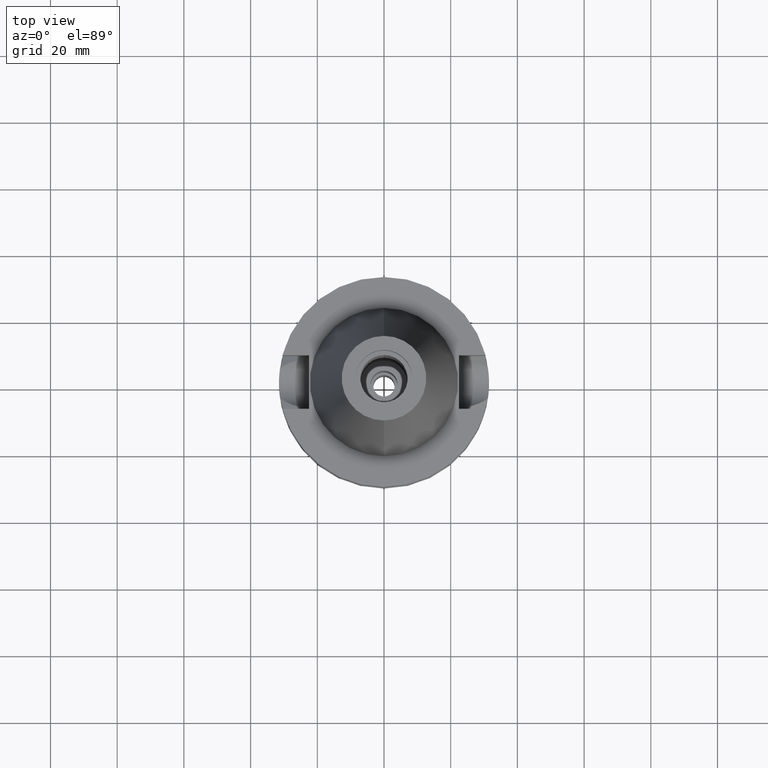
[diagram: clean part render]
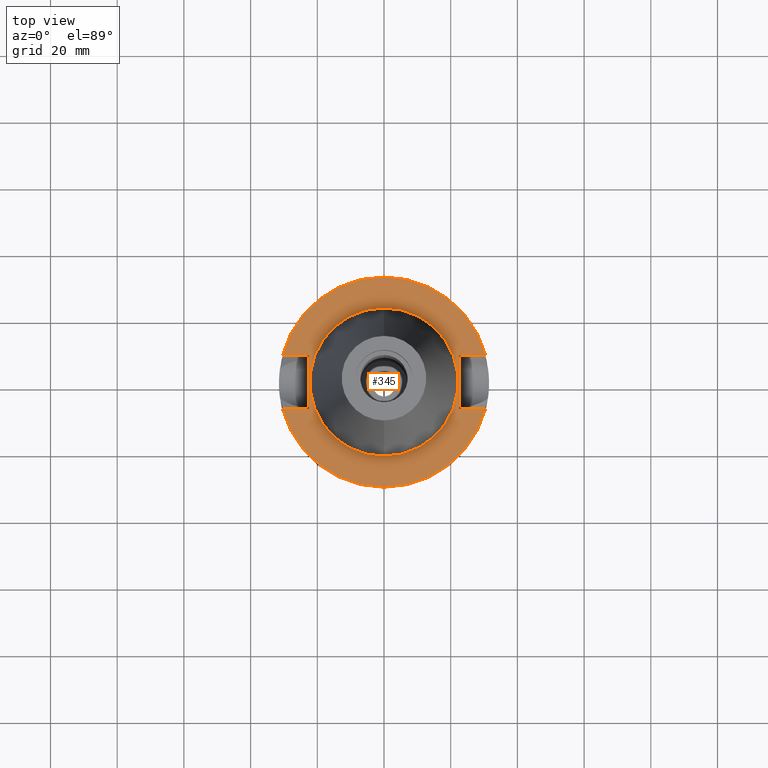
[diagram: same view with one face highlighted and labeled with its STEP entity id]
A machine part, top view. The second image highlights one B-rep face of the part: STEP entity #345.
In plain terms, the highlighted planar face has unit normal (0, 0, -1).
Its self-contained STEP definition (entity closure, byte-faithful):
#111 = EDGE_CURVE ( 'NONE', #2671, #485, #855, .T. ) ;
#132 = ORIENTED_EDGE ( 'NONE', *, *, #339, .F. ) ;
#154 = DIRECTION ( 'NONE',  ( 1.000000000000000000, -3.506251283225999947E-14, 0.0000000000000000000 ) ) ;
#158 = EDGE_CURVE ( 'NONE', #496, #864, #1599, .T. ) ;
#162 = VECTOR ( 'NONE', #3024, 1000.000000000000000 ) ;
#180 = DIRECTION ( 'NONE',  ( 0.0000000000000000000, -1.000000000000000000, 0.0000000000000000000 ) ) ;
#244 = DIRECTION ( 'NONE',  ( 0.0000000000000000000, -1.000000000000000000, 0.0000000000000000000 ) ) ;
#264 = CIRCLE ( 'NONE', #1740, 31.50000000000000000 ) ;
#283 = CARTESIAN_POINT ( 'NONE',  ( -22.50000000000000000, 8.050000000000000711, -1.000000000000000000 ) ) ;
#332 = AXIS2_PLACEMENT_3D ( 'NONE', #963, #726, #244 ) ;
#339 = EDGE_CURVE ( 'NONE', #1373, #2643, #1707, .T. ) ;
#345 = ADVANCED_FACE ( 'NONE', ( #1867, #676 ), #2837, .F. ) ;
#377 = CARTESIAN_POINT ( 'NONE',  ( -22.50000000000000000, -8.050000000000000711, -1.000000000000000000 ) ) ;
#405 = LINE ( 'NONE', #2283, #162 ) ;
#418 = EDGE_CURVE ( 'NONE', #2671, #496, #405, .T. ) ;
#452 = ORIENTED_EDGE ( 'NONE', *, *, #1435, .F. ) ;
#456 = DIRECTION ( 'NONE',  ( 0.0000000000000000000, 0.0000000000000000000, 1.000000000000000000 ) ) ;
#477 = DIRECTION ( 'NONE',  ( -1.000000000000000000, -3.550916904668000126E-14, 0.0000000000000000000 ) ) ;
#485 = VERTEX_POINT ( 'NONE', #2348 ) ;
#496 = VERTEX_POINT ( 'NONE', #1871 ) ;
#506 = LINE ( 'NONE', #1979, #881 ) ;
#511 = CARTESIAN_POINT ( 'NONE',  ( 22.50000000000000000, 8.050000000000000711, -1.000000000000000000 ) ) ;
#544 = ORIENTED_EDGE ( 'NONE', *, *, #1494, .F. ) ;
#676 = FACE_BOUND ( 'NONE', #714, .T. ) ;
#714 = EDGE_LOOP ( 'NONE', ( #1320, #132 ) ) ;
#726 = DIRECTION ( 'NONE',  ( 0.0000000000000000000, 0.0000000000000000000, 1.000000000000000000 ) ) ;
#842 = CARTESIAN_POINT ( 'NONE',  ( 0.0000000000000000000, 2.144479009986999603E-14, -1.000000000000000000 ) ) ;
#855 = LINE ( 'NONE', #2280, #1304 ) ;
#864 = VERTEX_POINT ( 'NONE', #2975 ) ;
#881 = VECTOR ( 'NONE', #2431, 1000.000000000000000 ) ;
#882 = AXIS2_PLACEMENT_3D ( 'NONE', #1863, #456, #922 ) ;
#910 = CARTESIAN_POINT ( 'NONE',  ( -30.45402272279000044, 8.050000000000000711, -1.000000000000000000 ) ) ;
#922 = DIRECTION ( 'NONE',  ( 0.0000000000000000000, 1.000000000000000000, 0.0000000000000000000 ) ) ;
#958 = CARTESIAN_POINT ( 'NONE',  ( 0.0000000000000000000, -22.22500000000000142, -0.9999999999999000799 ) ) ;
#963 = CARTESIAN_POINT ( 'NONE',  ( 0.0000000000000000000, 2.144479009986999603E-14, -0.9999999999999000799 ) ) ;
#998 = CARTESIAN_POINT ( 'NONE',  ( 0.0000000000000000000, 22.22500000000000142, -0.9999999999999000799 ) ) ;
#1005 = DIRECTION ( 'NONE',  ( 0.0000000000000000000, 1.000000000000000000, 0.0000000000000000000 ) ) ;
#1037 = VECTOR ( 'NONE', #1005, 1000.000000000000000 ) ;
#1116 = DIRECTION ( 'NONE',  ( 1.000000000000000000, 3.573249715389999860E-14, 0.0000000000000000000 ) ) ;
#1161 = DIRECTION ( 'NONE',  ( 0.0000000000000000000, 0.0000000000000000000, -1.000000000000000000 ) ) ;
#1174 = CARTESIAN_POINT ( 'NONE',  ( 0.0000000000000000000, 2.144479009986999603E-14, -1.000000000000000000 ) ) ;
#1209 = EDGE_CURVE ( 'NONE', #1249, #485, #264, .T. ) ;
#1249 = VERTEX_POINT ( 'NONE', #910 ) ;
#1258 = VECTOR ( 'NONE', #1116, 1000.000000000000000 ) ;
#1304 = VECTOR ( 'NONE', #154, 1000.000000000000000 ) ;
#1320 = ORIENTED_EDGE ( 'NONE', *, *, #1352, .F. ) ;
#1341 = ORIENTED_EDGE ( 'NONE', *, *, #3130, .T. ) ;
#1352 = EDGE_CURVE ( 'NONE', #2643, #1373, #2098, .T. ) ;
#1373 = VERTEX_POINT ( 'NONE', #958 ) ;
#1387 = CIRCLE ( 'NONE', #2404, 31.50000000000000000 ) ;
#1435 = EDGE_CURVE ( 'NONE', #2461, #1971, #2957, .T. ) ;
#1494 = EDGE_CURVE ( 'NONE', #1971, #1249, #1992, .T. ) ;
#1599 = LINE ( 'NONE', #1804, #1258 ) ;
#1611 = VERTEX_POINT ( 'NONE', #3025 ) ;
#1668 = EDGE_CURVE ( 'NONE', #864, #1611, #1387, .T. ) ;
#1677 = CARTESIAN_POINT ( 'NONE',  ( -22.50000000000000000, 8.050000000000000711, -1.000000000000000000 ) ) ;
#1707 = CIRCLE ( 'NONE', #332, 22.22500000000000142 ) ;
#1740 = AXIS2_PLACEMENT_3D ( 'NONE', #1174, #1917, #1830 ) ;
#1790 = DIRECTION ( 'NONE',  ( 0.0000000000000000000, 0.0000000000000000000, -1.000000000000000000 ) ) ;
#1804 = CARTESIAN_POINT ( 'NONE',  ( 22.50000000000000000, -8.050000000000000711, -1.000000000000000000 ) ) ;
#1830 = DIRECTION ( 'NONE',  ( 0.0000000000000000000, 1.000000000000000000, 0.0000000000000000000 ) ) ;
#1863 = CARTESIAN_POINT ( 'NONE',  ( 0.0000000000000000000, 2.144479009986999603E-14, -0.9999999999999000799 ) ) ;
#1867 = FACE_OUTER_BOUND ( 'NONE', #2291, .T. ) ;
#1871 = CARTESIAN_POINT ( 'NONE',  ( 22.50000000000000000, -8.050000000000000711, -1.000000000000000000 ) ) ;
#1878 = ORIENTED_EDGE ( 'NONE', *, *, #1668, .F. ) ;
#1917 = DIRECTION ( 'NONE',  ( 0.0000000000000000000, 0.0000000000000000000, -1.000000000000000000 ) ) ;
#1938 = ORIENTED_EDGE ( 'NONE', *, *, #1209, .F. ) ;
#1971 = VERTEX_POINT ( 'NONE', #1677 ) ;
#1979 = CARTESIAN_POINT ( 'NONE',  ( -22.50000000000000000, -8.050000000000000711, -1.000000000000000000 ) ) ;
#1992 = LINE ( 'NONE', #283, #2964 ) ;
#2098 = CIRCLE ( 'NONE', #882, 22.22500000000000142 ) ;
#2115 = AXIS2_PLACEMENT_3D ( 'NONE', #2599, #1161, #180 ) ;
#2188 = CARTESIAN_POINT ( 'NONE',  ( -22.50000000000000000, -8.050000000000000711, -1.000000000000000000 ) ) ;
#2280 = CARTESIAN_POINT ( 'NONE',  ( 22.50000000000000000, 8.050000000000000711, -1.000000000000000000 ) ) ;
#2283 = CARTESIAN_POINT ( 'NONE',  ( 22.50000000000000000, 8.050000000000000711, -1.000000000000000000 ) ) ;
#2291 = EDGE_LOOP ( 'NONE', ( #1341, #1878, #2529, #2686, #2329, #1938, #544, #452 ) ) ;
#2329 = ORIENTED_EDGE ( 'NONE', *, *, #111, .T. ) ;
#2348 = CARTESIAN_POINT ( 'NONE',  ( 30.45402272279000044, 8.050000000000000711, -1.000000000000000000 ) ) ;
#2404 = AXIS2_PLACEMENT_3D ( 'NONE', #842, #1790, #2492 ) ;
#2431 = DIRECTION ( 'NONE',  ( -1.000000000000000000, 3.550916904668000126E-14, 0.0000000000000000000 ) ) ;
#2461 = VERTEX_POINT ( 'NONE', #377 ) ;
#2492 = DIRECTION ( 'NONE',  ( 0.0000000000000000000, -1.000000000000000000, 0.0000000000000000000 ) ) ;
#2529 = ORIENTED_EDGE ( 'NONE', *, *, #158, .F. ) ;
#2599 = CARTESIAN_POINT ( 'NONE',  ( 0.0000000000000000000, 1.212400331155999925E-14, -1.000000000000000000 ) ) ;
#2643 = VERTEX_POINT ( 'NONE', #998 ) ;
#2671 = VERTEX_POINT ( 'NONE', #511 ) ;
#2686 = ORIENTED_EDGE ( 'NONE', *, *, #418, .F. ) ;
#2837 = PLANE ( 'NONE',  #2115 ) ;
#2957 = LINE ( 'NONE', #2188, #1037 ) ;
#2964 = VECTOR ( 'NONE', #477, 1000.000000000000000 ) ;
#2975 = CARTESIAN_POINT ( 'NONE',  ( 30.45402272279000044, -8.050000000000000711, -1.000000000000000000 ) ) ;
#3024 = DIRECTION ( 'NONE',  ( 0.0000000000000000000, -1.000000000000000000, 0.0000000000000000000 ) ) ;
#3025 = CARTESIAN_POINT ( 'NONE',  ( -30.45402272279000044, -8.050000000000000711, -1.000000000000000000 ) ) ;
#3130 = EDGE_CURVE ( 'NONE', #2461, #1611, #506, .T. ) ;